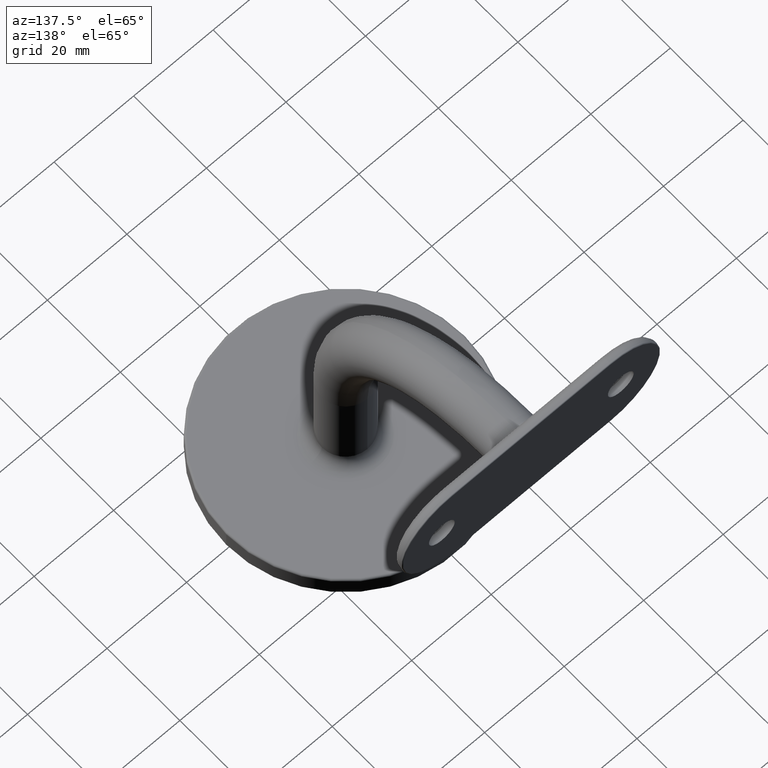
[diagram: clean part render]
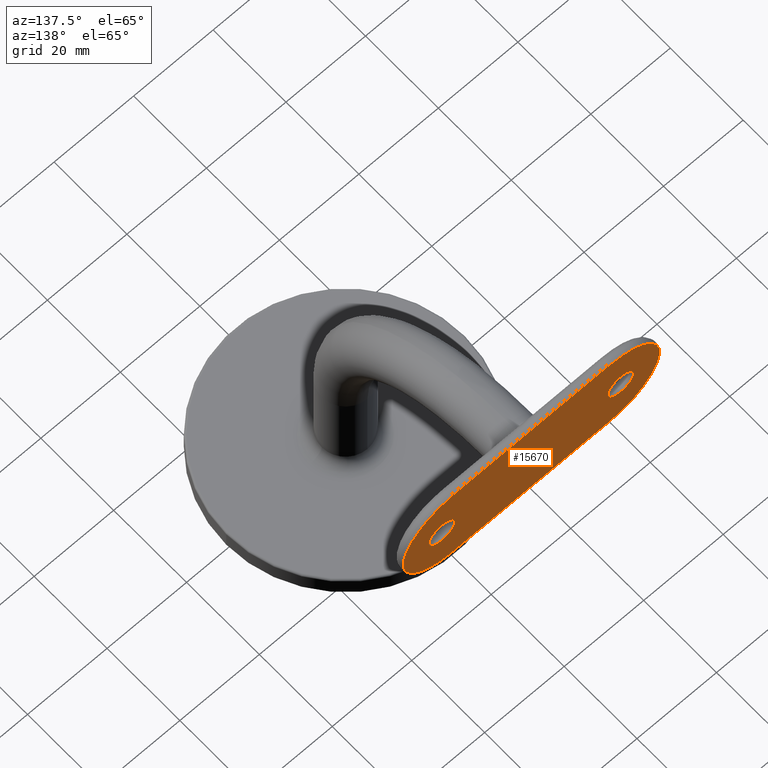
[diagram: same view with one face highlighted and labeled with its STEP entity id]
A machine part, auxiliary view. The second image highlights one B-rep face of the part: STEP entity #15670.
In plain terms, the highlighted planar face has unit normal (0, -1, 0).
Its self-contained STEP definition (entity closure, byte-faithful):
#125 = AXIS2_PLACEMENT_3D ( 'NONE', #13828, #2856, #1423 ) ;
#384 = VERTEX_POINT ( 'NONE', #465 ) ;
#465 = CARTESIAN_POINT ( 'NONE',  ( 22.50000000000000000, 51.00000000000000000, 78.24999999999998579 ) ) ;
#578 = EDGE_LOOP ( 'NONE', ( #12397, #661 ) ) ;
#661 = ORIENTED_EDGE ( 'NONE', *, *, #10300, .F. ) ;
#1151 = FACE_BOUND ( 'NONE', #578, .T. ) ;
#1225 = LINE ( 'NONE', #6698, #14008 ) ;
#1423 = DIRECTION ( 'NONE',  ( 0.000000000000000000, 0.000000000000000000, 1.000000000000000000 ) ) ;
#1502 = CARTESIAN_POINT ( 'NONE',  ( -22.50000000000000000, 51.00000000000000000, 74.99999999999998579 ) ) ;
#1742 = EDGE_LOOP ( 'NONE', ( #13583, #14763 ) ) ;
#1775 = CIRCLE ( 'NONE', #12854, 12.24999999999999645 ) ;
#1952 = ORIENTED_EDGE ( 'NONE', *, *, #12013, .T. ) ;
#2702 = VERTEX_POINT ( 'NONE', #14863 ) ;
#2856 = DIRECTION ( 'NONE',  ( 0.000000000000000000, 1.000000000000000000, -3.828568698926949435E-16 ) ) ;
#3017 = EDGE_CURVE ( 'NONE', #6000, #8310, #1775, .T. ) ;
#3145 = CARTESIAN_POINT ( 'NONE',  ( 20.00000000000001066, 51.00000000000000711, 87.24999999999998579 ) ) ;
#3430 = CARTESIAN_POINT ( 'NONE',  ( 0.000000000000000000, 51.00000000000000000, 75.00000000000001421 ) ) ;
#3481 = LINE ( 'NONE', #9721, #12942 ) ;
#4044 = FACE_OUTER_BOUND ( 'NONE', #14150, .T. ) ;
#4201 = AXIS2_PLACEMENT_3D ( 'NONE', #1502, #11448, #15011 ) ;
#4272 = CARTESIAN_POINT ( 'NONE',  ( -22.50000000000000000, 51.00000000000000000, 74.99999999999998579 ) ) ;
#4329 = DIRECTION ( 'NONE',  ( -1.000000000000000000, 1.992452400425568382E-31, 5.204170427930422269E-16 ) ) ;
#4384 = EDGE_CURVE ( 'NONE', #11028, #4832, #6376, .T. ) ;
#4452 = CARTESIAN_POINT ( 'NONE',  ( -20.00000000000000355, 50.99999999999999289, 62.75000000000000000 ) ) ;
#4687 = DIRECTION ( 'NONE',  ( -0.000000000000000000, 1.000000000000000000, -3.828568698926949435E-16 ) ) ;
#4832 = VERTEX_POINT ( 'NONE', #11205 ) ;
#5243 = AXIS2_PLACEMENT_3D ( 'NONE', #11560, #6542, #10153 ) ;
#5352 = VERTEX_POINT ( 'NONE', #15086 ) ;
#5518 = AXIS2_PLACEMENT_3D ( 'NONE', #4272, #11541, #14004 ) ;
#5674 = CARTESIAN_POINT ( 'NONE',  ( 22.50000000000000000, 51.00000000000000000, 74.99999999999998579 ) ) ;
#5882 = CIRCLE ( 'NONE', #5243, 12.24999999999999645 ) ;
#6000 = VERTEX_POINT ( 'NONE', #4452 ) ;
#6376 = CIRCLE ( 'NONE', #5518, 3.250000000000002665 ) ;
#6542 = DIRECTION ( 'NONE',  ( -0.000000000000000000, 1.000000000000000000, -3.828568698926949435E-16 ) ) ;
#6698 = CARTESIAN_POINT ( 'NONE',  ( -20.00000000000000355, 50.99999999999999289, 62.75000000000001421 ) ) ;
#6795 = ORIENTED_EDGE ( 'NONE', *, *, #6838, .T. ) ;
#6838 = EDGE_CURVE ( 'NONE', #8310, #7722, #3481, .T. ) ;
#7517 = ORIENTED_EDGE ( 'NONE', *, *, #3017, .T. ) ;
#7596 = CIRCLE ( 'NONE', #8590, 3.250000000000002665 ) ;
#7722 = VERTEX_POINT ( 'NONE', #3145 ) ;
#7782 = DIRECTION ( 'NONE',  ( 0.000000000000000000, -1.000000000000000000, 3.828568698926949435E-16 ) ) ;
#8309 = FACE_BOUND ( 'NONE', #1742, .T. ) ;
#8310 = VERTEX_POINT ( 'NONE', #15242 ) ;
#8590 = AXIS2_PLACEMENT_3D ( 'NONE', #5674, #14441, #13187 ) ;
#8749 = EDGE_CURVE ( 'NONE', #384, #2702, #15785, .T. ) ;
#9639 = PLANE ( 'NONE',  #11710 ) ;
#9721 = CARTESIAN_POINT ( 'NONE',  ( 20.00000000000001066, 51.00000000000000711, 87.24999999999998579 ) ) ;
#10153 = DIRECTION ( 'NONE',  ( 8.496604780294568137E-16, -5.664403186863045425E-16, -1.000000000000000000 ) ) ;
#10300 = EDGE_CURVE ( 'NONE', #4832, #11028, #13836, .T. ) ;
#10793 = DIRECTION ( 'NONE',  ( 0.000000000000000000, -5.664403186863045425E-16, -1.000000000000000000 ) ) ;
#10896 = CARTESIAN_POINT ( 'NONE',  ( -20.00000000000000355, 51.00000000000000000, 75.00000000000000000 ) ) ;
#11028 = VERTEX_POINT ( 'NONE', #15101 ) ;
#11205 = CARTESIAN_POINT ( 'NONE',  ( -22.50000000000000000, 51.00000000000000000, 71.74999999999998579 ) ) ;
#11448 = DIRECTION ( 'NONE',  ( 0.000000000000000000, 1.000000000000000000, -3.828568698926949435E-16 ) ) ;
#11473 = EDGE_CURVE ( 'NONE', #7722, #5352, #5882, .T. ) ;
#11541 = DIRECTION ( 'NONE',  ( 0.000000000000000000, 1.000000000000000000, -3.828568698926949435E-16 ) ) ;
#11560 = CARTESIAN_POINT ( 'NONE',  ( 20.00000000000000355, 51.00000000000000000, 74.99999999999997158 ) ) ;
#11710 = AXIS2_PLACEMENT_3D ( 'NONE', #3430, #7782, #12627 ) ;
#12013 = EDGE_CURVE ( 'NONE', #5352, #6000, #1225, .T. ) ;
#12091 = EDGE_CURVE ( 'NONE', #2702, #384, #7596, .T. ) ;
#12397 = ORIENTED_EDGE ( 'NONE', *, *, #4384, .F. ) ;
#12627 = DIRECTION ( 'NONE',  ( -1.000000000000000000, -0.000000000000000000, 0.000000000000000000 ) ) ;
#12854 = AXIS2_PLACEMENT_3D ( 'NONE', #10896, #4687, #10793 ) ;
#12942 = VECTOR ( 'NONE', #14652, 1000.000000000000000 ) ;
#13187 = DIRECTION ( 'NONE',  ( 0.000000000000000000, 0.000000000000000000, 1.000000000000000000 ) ) ;
#13583 = ORIENTED_EDGE ( 'NONE', *, *, #8749, .F. ) ;
#13776 = ORIENTED_EDGE ( 'NONE', *, *, #11473, .T. ) ;
#13828 = CARTESIAN_POINT ( 'NONE',  ( 22.50000000000000000, 51.00000000000000000, 74.99999999999998579 ) ) ;
#13836 = CIRCLE ( 'NONE', #4201, 3.250000000000002665 ) ;
#14004 = DIRECTION ( 'NONE',  ( 0.000000000000000000, 0.000000000000000000, 1.000000000000000000 ) ) ;
#14008 = VECTOR ( 'NONE', #4329, 1000.000000000000000 ) ;
#14150 = EDGE_LOOP ( 'NONE', ( #13776, #1952, #7517, #6795 ) ) ;
#14441 = DIRECTION ( 'NONE',  ( 0.000000000000000000, 1.000000000000000000, -3.828568698926949435E-16 ) ) ;
#14652 = DIRECTION ( 'NONE',  ( 1.000000000000000000, -1.328301600283711816E-31, -3.469446951953613696E-16 ) ) ;
#14763 = ORIENTED_EDGE ( 'NONE', *, *, #12091, .F. ) ;
#14863 = CARTESIAN_POINT ( 'NONE',  ( 22.50000000000000000, 51.00000000000000000, 71.74999999999998579 ) ) ;
#15011 = DIRECTION ( 'NONE',  ( 0.000000000000000000, 0.000000000000000000, 1.000000000000000000 ) ) ;
#15086 = CARTESIAN_POINT ( 'NONE',  ( 19.99999999999999645, 50.99999999999999289, 62.74999999999997158 ) ) ;
#15101 = CARTESIAN_POINT ( 'NONE',  ( -22.50000000000000000, 51.00000000000000000, 78.24999999999998579 ) ) ;
#15242 = CARTESIAN_POINT ( 'NONE',  ( -20.00000000000000355, 51.00000000000000711, 87.25000000000000000 ) ) ;
#15670 = ADVANCED_FACE ( 'NONE', ( #8309, #1151, #4044 ), #9639, .F. ) ;
#15785 = CIRCLE ( 'NONE', #125, 3.250000000000002665 ) ;